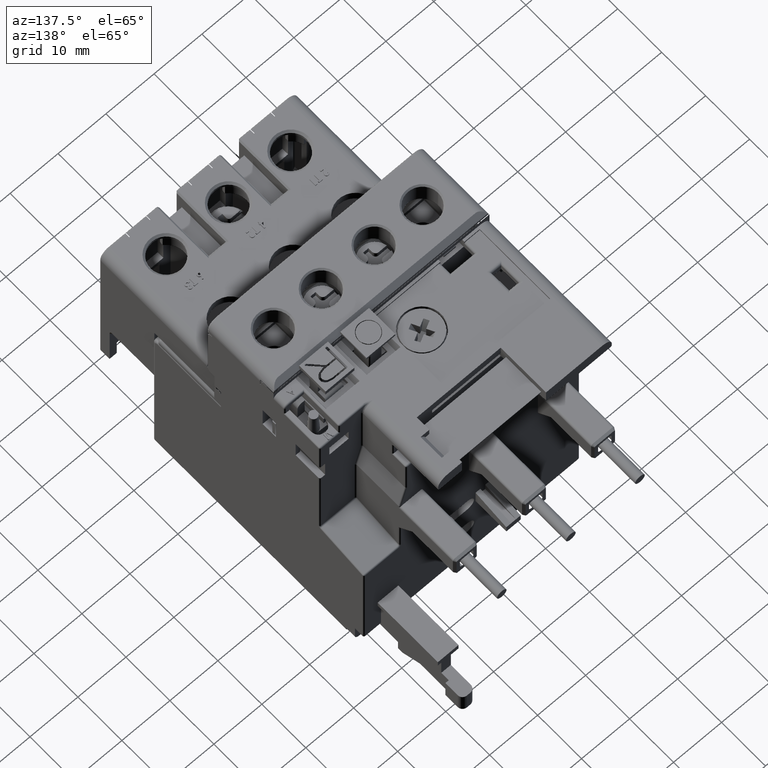
[diagram: clean part render]
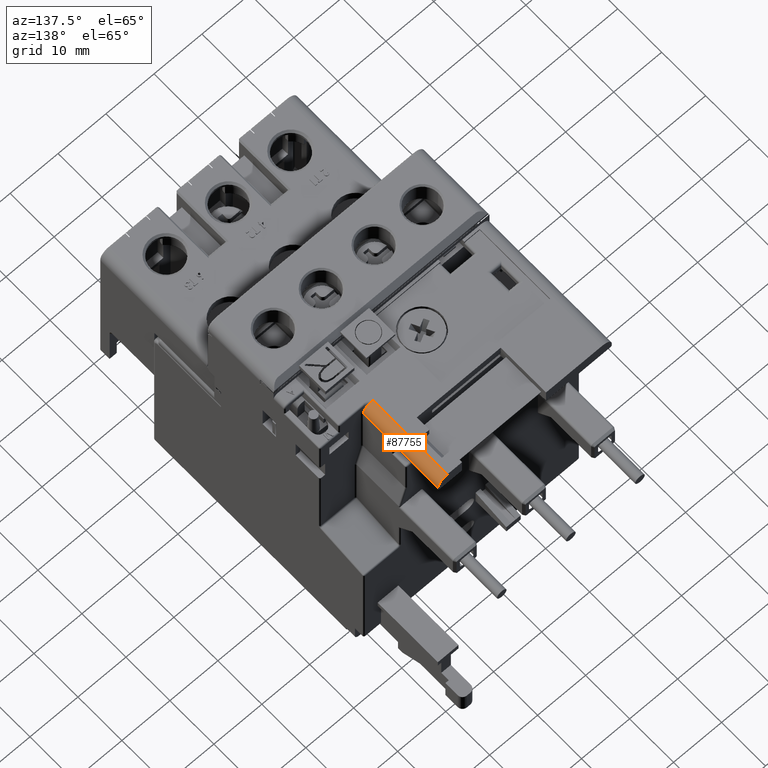
[diagram: same view with one face highlighted and labeled with its STEP entity id]
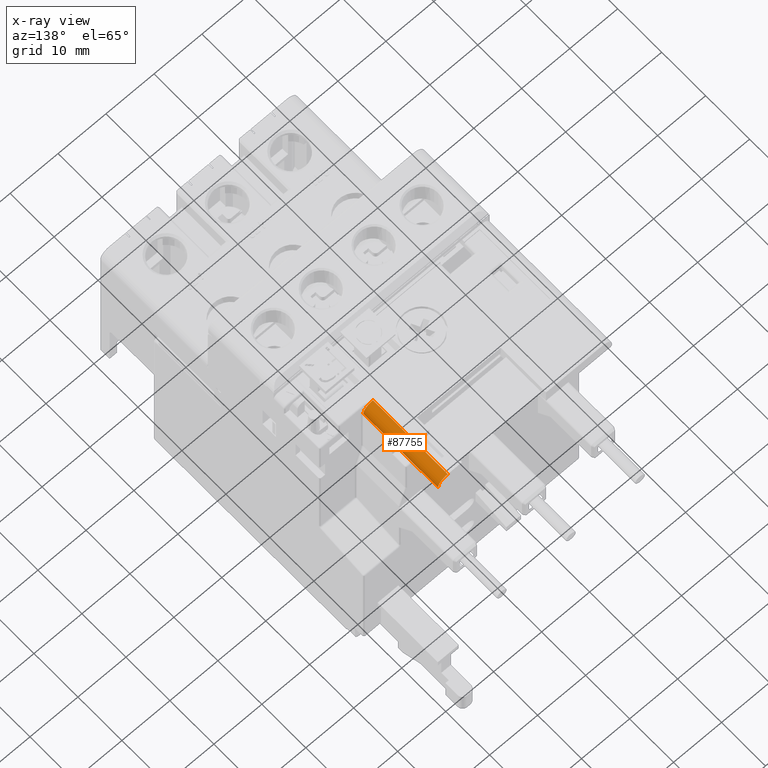
[diagram: x-ray of the same camera — body ghosted, the highlighted face saturated]
A machine part, auxiliary view. The second image highlights one B-rep face of the part: STEP entity #87755.
The next image is the same camera in x-ray: the body ghosted, the highlighted face saturated — about 0% of this face is hidden behind the body in this view.
In plain terms, the highlighted cylindrical surface (edge-blend (fillet) strip) has radius 2 mm, axis along (0, 1, 0).
Its self-contained STEP definition (entity closure, byte-faithful):
#29067=CARTESIAN_POINT('',(4.606299212598E-1,9.606299212598E-1,
-5.905511811024E-2));
#29068=DIRECTION('',(0.E0,1.E0,0.E0));
#29069=DIRECTION('',(0.E0,0.E0,1.E0));
#29070=AXIS2_PLACEMENT_3D('',#29067,#29068,#29069);
#29083=DIRECTION('',(0.E0,1.E0,0.E0));
#29084=VECTOR('',#29083,6.692913385827E-1);
#29085=CARTESIAN_POINT('',(4.606299212598E-1,9.606299212598E-1,
1.968503937008E-2));
#29086=LINE('',#29085,#29084);
#29090=DIRECTION('',(0.E0,-1.E0,0.E0));
#29091=VECTOR('',#29090,6.692913385827E-1);
#29092=CARTESIAN_POINT('',(5.393700787402E-1,1.629921259843E0,
-5.905511811024E-2));
#29093=LINE('',#29092,#29091);
#29097=CARTESIAN_POINT('',(4.606299212598E-1,1.629921259843E0,
-5.905511811024E-2));
#29098=DIRECTION('',(0.E0,-1.E0,0.E0));
#29099=DIRECTION('',(1.E0,0.E0,0.E0));
#29100=AXIS2_PLACEMENT_3D('',#29097,#29098,#29099);
#57794=CARTESIAN_POINT('',(4.606299212598E-1,1.629921259843E0,
1.968503937008E-2));
#57795=VERTEX_POINT('',#57794);
#57796=CARTESIAN_POINT('',(4.606299212598E-1,9.606299212598E-1,
1.968503937008E-2));
#57797=VERTEX_POINT('',#57796);
#63681=CARTESIAN_POINT('',(5.393700787402E-1,9.606299212598E-1,
-5.905511811024E-2));
#63682=VERTEX_POINT('',#63681);
#63683=CARTESIAN_POINT('',(5.393700787402E-1,1.629921259843E0,
-5.905511811024E-2));
#63684=VERTEX_POINT('',#63683);
#87742=CARTESIAN_POINT('',(4.606299212598E-1,1.342519685039E0,
-5.905511811024E-2));
#87743=DIRECTION('',(0.E0,1.E0,0.E0));
#87744=DIRECTION('',(-1.E0,0.E0,0.E0));
#87745=AXIS2_PLACEMENT_3D('',#87742,#87743,#87744);
#87746=CYLINDRICAL_SURFACE('',#87745,7.874015748031E-2);
#87747=ORIENTED_EDGE('',*,*,#68485,.T.);
#87749=ORIENTED_EDGE('',*,*,#87748,.F.);
#87751=ORIENTED_EDGE('',*,*,#87750,.T.);
#87752=ORIENTED_EDGE('',*,*,#87653,.F.);
#87753=EDGE_LOOP('',(#87747,#87749,#87751,#87752));
#87754=FACE_OUTER_BOUND('',#87753,.F.);
#29071=CIRCLE('',#29070,7.874015748031E-2);
#29101=CIRCLE('',#29100,7.874015748031E-2);
#68485=EDGE_CURVE('',#57797,#57795,#29086,.T.);
#87653=EDGE_CURVE('',#57797,#63682,#29071,.T.);
#87748=EDGE_CURVE('',#63684,#57795,#29101,.T.);
#87750=EDGE_CURVE('',#63684,#63682,#29093,.T.);
#87755=ADVANCED_FACE('',(#87754),#87746,.T.);